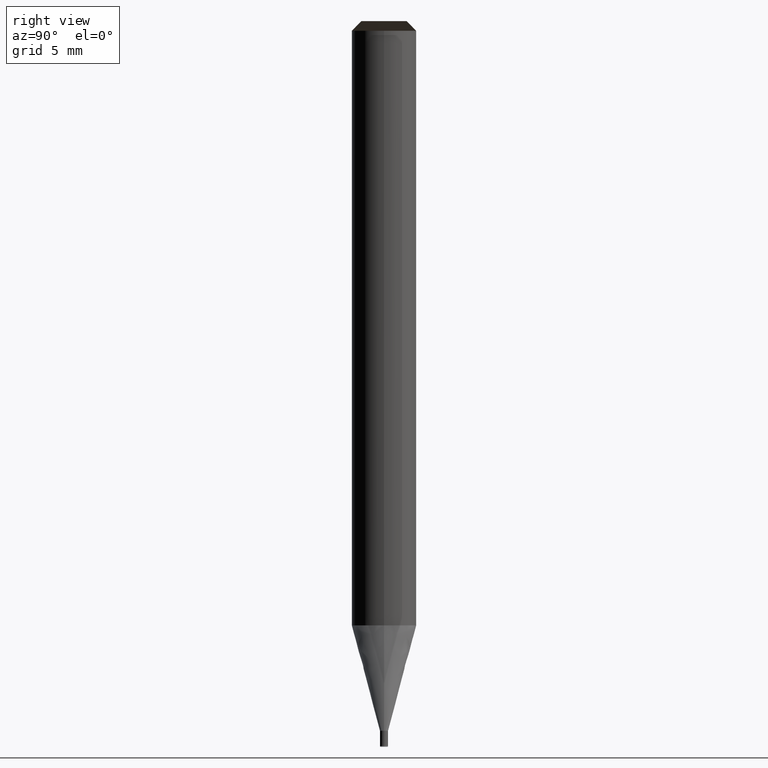
[diagram: clean part render]
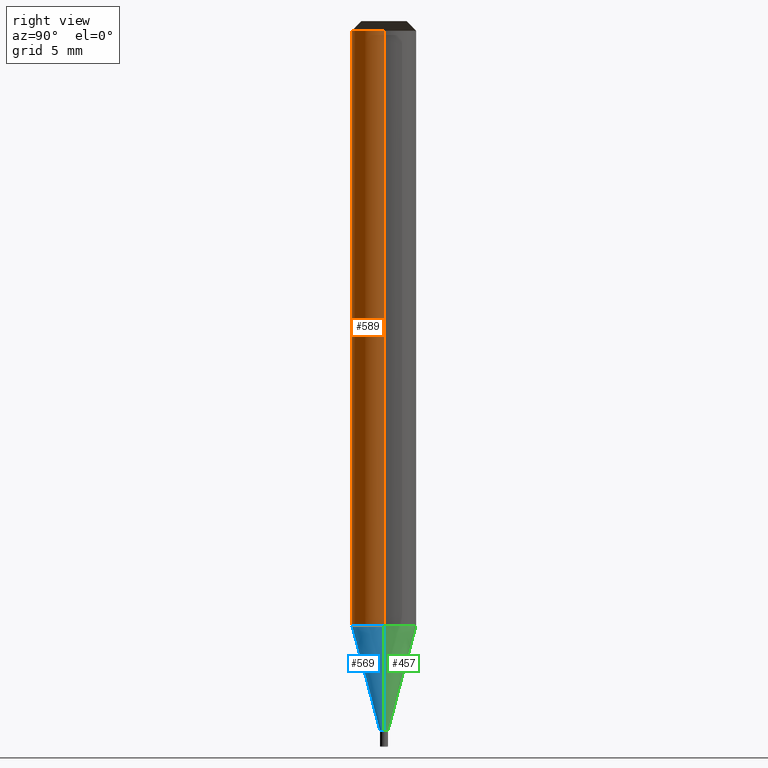
[diagram: same view with three faces highlighted in distinct colors, each labeled with its STEP entity id]
A machine part, right view with three faces highlighted in distinct colors.
Their STEP definitions:

[orange] entity #589 — the highlighted face is a freeform B-spline surface patch.
#221=CARTESIAN_POINT('',(2.0,0.0,0.0));
#225=CARTESIAN_POINT('',(-2.0,0.0,0.0));
#226=CARTESIAN_POINT('',(2.0,0.0,36.869));
#230=CARTESIAN_POINT('',(-2.0,0.0,36.869));
#240=CARTESIAN_POINT('',(-2.0,-2.0,0.0));
#241=CARTESIAN_POINT('',(0.0,-2.0,0.0));
#242=CARTESIAN_POINT('',(2.0,-2.0,0.0));
#243=CARTESIAN_POINT('',(-2.0,-2.0,36.869));
#244=CARTESIAN_POINT('',(0.0,-2.0,36.869));
#245=CARTESIAN_POINT('',(2.0,-2.0,36.869));
#570=(
BOUNDED_SURFACE()
B_SPLINE_SURFACE(1,2,(
(#225,#240,#241,#242,#221),
(#230,#243,#244,#245,#226)
), .UNSPECIFIED.,.F.,.F.,.F.)
B_SPLINE_SURFACE_WITH_KNOTS((2,2),(3,2,3),(
0.0,1.0),(
0.0,0.5,1.0), .UNSPECIFIED.)
GEOMETRIC_REPRESENTATION_ITEM()
RATIONAL_B_SPLINE_SURFACE(((1.0,0.707106781187,1.0,0.707106781187,1.0),
(1.0,0.707106781187,1.0,0.707106781187,1.0)
))
REPRESENTATION_ITEM('')
SURFACE()
);
#571=(
BOUNDED_CURVE()
B_SPLINE_CURVE(1,(#230,#225),.UNSPECIFIED.,.F.,.F.)
B_SPLINE_CURVE_WITH_KNOTS((2,2),
(0.0,1.0),.UNSPECIFIED.)
CURVE()
GEOMETRIC_REPRESENTATION_ITEM()
RATIONAL_B_SPLINE_CURVE((1.0,1.0))
REPRESENTATION_ITEM('')
);
#572=(
BOUNDED_CURVE()
B_SPLINE_CURVE(2,(#225,#240,#241,#242,#221),.UNSPECIFIED.,.F.,.F.)
B_SPLINE_CURVE_WITH_KNOTS((3,2,3),
(0.0,0.5,1.0),.UNSPECIFIED.)
CURVE()
GEOMETRIC_REPRESENTATION_ITEM()
RATIONAL_B_SPLINE_CURVE((1.0,0.707106781187,1.0,0.707106781187,1.0))
REPRESENTATION_ITEM('')
);
#573=(
BOUNDED_CURVE()
B_SPLINE_CURVE(1,(#221,#226),.UNSPECIFIED.,.F.,.F.)
B_SPLINE_CURVE_WITH_KNOTS((2,2),
(0.0,1.0),.UNSPECIFIED.)
CURVE()
GEOMETRIC_REPRESENTATION_ITEM()
RATIONAL_B_SPLINE_CURVE((1.0,1.0))
REPRESENTATION_ITEM('')
);
#574=(
BOUNDED_CURVE()
B_SPLINE_CURVE(2,(#226,#245,#244,#243,#230),.UNSPECIFIED.,.F.,.F.)
B_SPLINE_CURVE_WITH_KNOTS((3,2,3),
(0.0,0.5,1.0),.UNSPECIFIED.)
CURVE()
GEOMETRIC_REPRESENTATION_ITEM()
RATIONAL_B_SPLINE_CURVE((1.0,0.707106781187,1.0,0.707106781187,1.0))
REPRESENTATION_ITEM('')
);
#575=VERTEX_POINT('',#221);
#576=VERTEX_POINT('',#225);
#577=VERTEX_POINT('',#226);
#578=VERTEX_POINT('',#230);
#579=EDGE_CURVE('',#578,#576,#571,.T.);
#580=EDGE_CURVE('',#576,#575,#572,.T.);
#581=EDGE_CURVE('',#575,#577,#573,.T.);
#582=EDGE_CURVE('',#577,#578,#574,.T.);
#583=ORIENTED_EDGE('',*,*,#579,.T.);
#584=ORIENTED_EDGE('',*,*,#580,.T.);
#585=ORIENTED_EDGE('',*,*,#581,.T.);
#586=ORIENTED_EDGE('',*,*,#582,.T.);
#587=EDGE_LOOP('',(#583,#584,#585,#586));
#588=FACE_OUTER_BOUND('',#587,.T.);
#589=ADVANCED_FACE('',(#588),#570,.T.);

[blue] entity #569 — the highlighted face is a freeform B-spline surface patch.
#216=CARTESIAN_POINT('',(0.25,0.0,-6.531088913246));
#220=CARTESIAN_POINT('',(-0.25,0.0,-6.531088913246));
#221=CARTESIAN_POINT('',(2.0,0.0,0.0));
#225=CARTESIAN_POINT('',(-2.0,0.0,0.0));
#237=CARTESIAN_POINT('',(-0.25,-0.25,-6.531088913246));
#238=CARTESIAN_POINT('',(0.0,-0.25,-6.531088913246));
#239=CARTESIAN_POINT('',(0.25,-0.25,-6.531088913246));
#240=CARTESIAN_POINT('',(-2.0,-2.0,0.0));
#241=CARTESIAN_POINT('',(0.0,-2.0,0.0));
#242=CARTESIAN_POINT('',(2.0,-2.0,0.0));
#550=(
BOUNDED_SURFACE()
B_SPLINE_SURFACE(1,2,(
(#220,#237,#238,#239,#216),
(#225,#240,#241,#242,#221)
), .UNSPECIFIED.,.F.,.F.,.F.)
B_SPLINE_SURFACE_WITH_KNOTS((2,2),(3,2,3),(
0.0,1.0),(
0.0,0.5,1.0), .UNSPECIFIED.)
GEOMETRIC_REPRESENTATION_ITEM()
RATIONAL_B_SPLINE_SURFACE(((1.0,0.707106781187,1.0,0.707106781187,1.0),
(1.0,0.707106781187,1.0,0.707106781187,1.0)
))
REPRESENTATION_ITEM('')
SURFACE()
);
#551=(
BOUNDED_CURVE()
B_SPLINE_CURVE(1,(#225,#220),.UNSPECIFIED.,.F.,.F.)
B_SPLINE_CURVE_WITH_KNOTS((2,2),
(0.0,1.0),.UNSPECIFIED.)
CURVE()
GEOMETRIC_REPRESENTATION_ITEM()
RATIONAL_B_SPLINE_CURVE((1.0,1.0))
REPRESENTATION_ITEM('')
);
#552=(
BOUNDED_CURVE()
B_SPLINE_CURVE(2,(#220,#237,#238,#239,#216),.UNSPECIFIED.,.F.,.F.)
B_SPLINE_CURVE_WITH_KNOTS((3,2,3),
(0.0,0.5,1.0),.UNSPECIFIED.)
CURVE()
GEOMETRIC_REPRESENTATION_ITEM()
RATIONAL_B_SPLINE_CURVE((1.0,0.707106781187,1.0,0.707106781187,1.0))
REPRESENTATION_ITEM('')
);
#553=(
BOUNDED_CURVE()
B_SPLINE_CURVE(1,(#216,#221),.UNSPECIFIED.,.F.,.F.)
B_SPLINE_CURVE_WITH_KNOTS((2,2),
(0.0,1.0),.UNSPECIFIED.)
CURVE()
GEOMETRIC_REPRESENTATION_ITEM()
RATIONAL_B_SPLINE_CURVE((1.0,1.0))
REPRESENTATION_ITEM('')
);
#554=(
BOUNDED_CURVE()
B_SPLINE_CURVE(2,(#221,#242,#241,#240,#225),.UNSPECIFIED.,.F.,.F.)
B_SPLINE_CURVE_WITH_KNOTS((3,2,3),
(0.0,0.5,1.0),.UNSPECIFIED.)
CURVE()
GEOMETRIC_REPRESENTATION_ITEM()
RATIONAL_B_SPLINE_CURVE((1.0,0.707106781187,1.0,0.707106781187,1.0))
REPRESENTATION_ITEM('')
);
#555=VERTEX_POINT('',#216);
#556=VERTEX_POINT('',#220);
#557=VERTEX_POINT('',#221);
#558=VERTEX_POINT('',#225);
#559=EDGE_CURVE('',#558,#556,#551,.T.);
#560=EDGE_CURVE('',#556,#555,#552,.T.);
#561=EDGE_CURVE('',#555,#557,#553,.T.);
#562=EDGE_CURVE('',#557,#558,#554,.T.);
#563=ORIENTED_EDGE('',*,*,#559,.T.);
#564=ORIENTED_EDGE('',*,*,#560,.T.);
#565=ORIENTED_EDGE('',*,*,#561,.T.);
#566=ORIENTED_EDGE('',*,*,#562,.T.);
#567=EDGE_LOOP('',(#563,#564,#565,#566));
#568=FACE_OUTER_BOUND('',#567,.T.);
#569=ADVANCED_FACE('',(#568),#550,.T.);

[green] entity #457 — the highlighted face is a freeform B-spline surface patch.
#216=CARTESIAN_POINT('',(0.25,0.0,-6.531088913246));
#217=CARTESIAN_POINT('',(0.25,0.25,-6.531088913246));
#218=CARTESIAN_POINT('',(0.0,0.25,-6.531088913246));
#219=CARTESIAN_POINT('',(-0.25,0.25,-6.531088913246));
#220=CARTESIAN_POINT('',(-0.25,0.0,-6.531088913246));
#221=CARTESIAN_POINT('',(2.0,0.0,0.0));
#222=CARTESIAN_POINT('',(2.0,2.0,0.0));
#223=CARTESIAN_POINT('',(0.0,2.0,0.0));
#224=CARTESIAN_POINT('',(-2.0,2.0,0.0));
#225=CARTESIAN_POINT('',(-2.0,0.0,0.0));
#438=(
BOUNDED_SURFACE()
B_SPLINE_SURFACE(1,2,(
(#216,#217,#218,#219,#220),
(#221,#222,#223,#224,#225)
), .UNSPECIFIED.,.F.,.F.,.F.)
B_SPLINE_SURFACE_WITH_KNOTS((2,2),(3,2,3),(
0.0,1.0),(
0.0,0.5,1.0), .UNSPECIFIED.)
GEOMETRIC_REPRESENTATION_ITEM()
RATIONAL_B_SPLINE_SURFACE(((1.0,0.707106781187,1.0,0.707106781187,1.0),
(1.0,0.707106781187,1.0,0.707106781187,1.0)
))
REPRESENTATION_ITEM('')
SURFACE()
);
#439=(
BOUNDED_CURVE()
B_SPLINE_CURVE(2,(#221,#222,#223,#224,#225),.UNSPECIFIED.,.F.,.F.)
B_SPLINE_CURVE_WITH_KNOTS((3,2,3),
(0.0,0.5,1.0),.UNSPECIFIED.)
CURVE()
GEOMETRIC_REPRESENTATION_ITEM()
RATIONAL_B_SPLINE_CURVE((1.0,0.707106781187,1.0,0.707106781187,1.0))
REPRESENTATION_ITEM('')
);
#440=(
BOUNDED_CURVE()
B_SPLINE_CURVE(1,(#225,#220),.UNSPECIFIED.,.F.,.F.)
B_SPLINE_CURVE_WITH_KNOTS((2,2),
(0.0,1.0),.UNSPECIFIED.)
CURVE()
GEOMETRIC_REPRESENTATION_ITEM()
RATIONAL_B_SPLINE_CURVE((1.0,1.0))
REPRESENTATION_ITEM('')
);
#441=(
BOUNDED_CURVE()
B_SPLINE_CURVE(2,(#220,#219,#218,#217,#216),.UNSPECIFIED.,.F.,.F.)
B_SPLINE_CURVE_WITH_KNOTS((3,2,3),
(0.0,0.5,1.0),.UNSPECIFIED.)
CURVE()
GEOMETRIC_REPRESENTATION_ITEM()
RATIONAL_B_SPLINE_CURVE((1.0,0.707106781187,1.0,0.707106781187,1.0))
REPRESENTATION_ITEM('')
);
#442=(
BOUNDED_CURVE()
B_SPLINE_CURVE(1,(#216,#221),.UNSPECIFIED.,.F.,.F.)
B_SPLINE_CURVE_WITH_KNOTS((2,2),
(0.0,1.0),.UNSPECIFIED.)
CURVE()
GEOMETRIC_REPRESENTATION_ITEM()
RATIONAL_B_SPLINE_CURVE((1.0,1.0))
REPRESENTATION_ITEM('')
);
#443=VERTEX_POINT('',#216);
#444=VERTEX_POINT('',#220);
#445=VERTEX_POINT('',#221);
#446=VERTEX_POINT('',#225);
#447=EDGE_CURVE('',#445,#446,#439,.T.);
#448=EDGE_CURVE('',#446,#444,#440,.T.);
#449=EDGE_CURVE('',#444,#443,#441,.T.);
#450=EDGE_CURVE('',#443,#445,#442,.T.);
#451=ORIENTED_EDGE('',*,*,#447,.T.);
#452=ORIENTED_EDGE('',*,*,#448,.T.);
#453=ORIENTED_EDGE('',*,*,#449,.T.);
#454=ORIENTED_EDGE('',*,*,#450,.T.);
#455=EDGE_LOOP('',(#451,#452,#453,#454));
#456=FACE_OUTER_BOUND('',#455,.T.);
#457=ADVANCED_FACE('',(#456),#438,.T.);